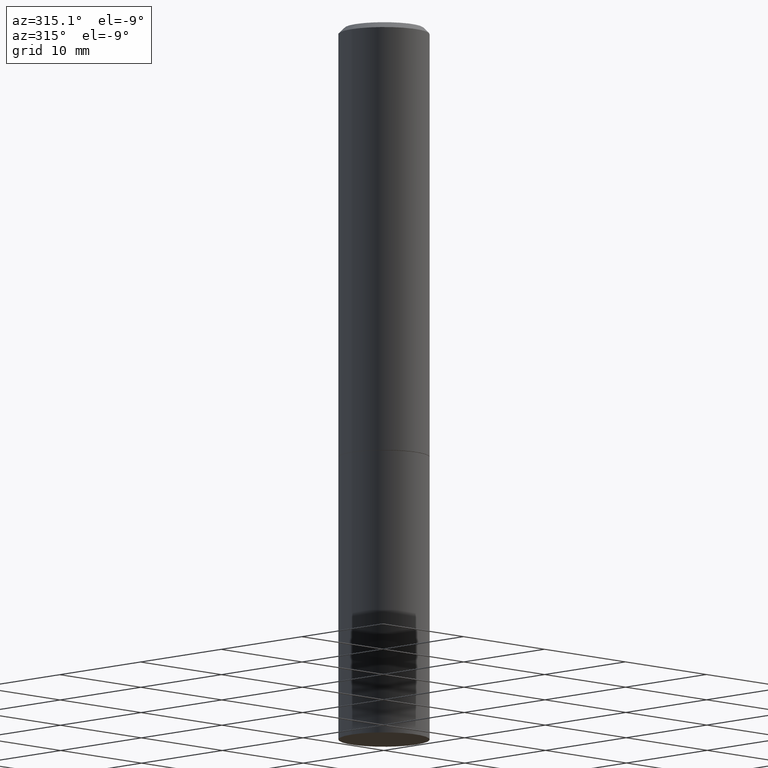
[diagram: clean part render]
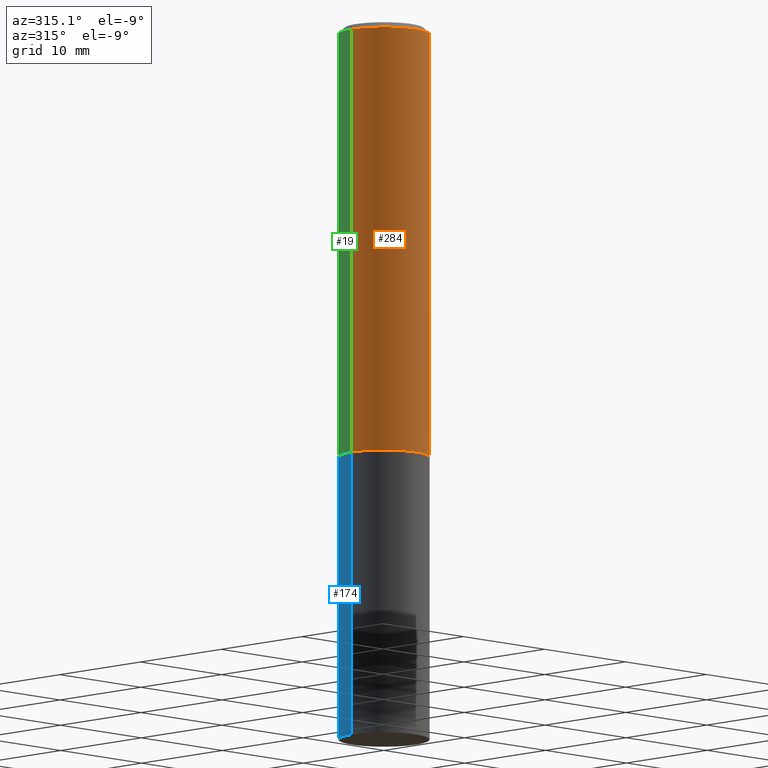
[diagram: same view with three faces highlighted in distinct colors, each labeled with its STEP entity id]
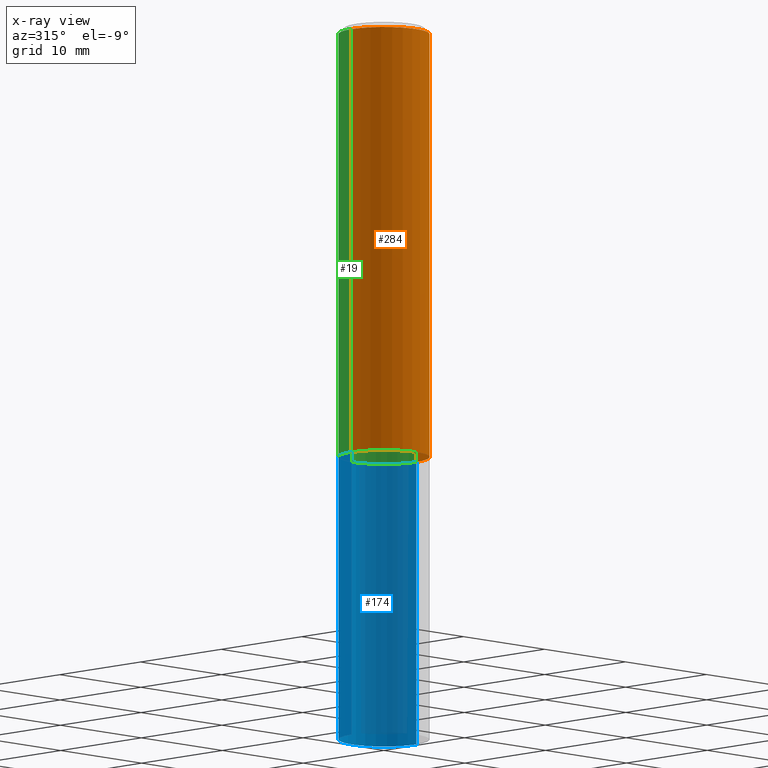
[diagram: x-ray of the same camera — body ghosted, the three highlighted faces saturated]
A machine part, auxiliary view with three faces highlighted in distinct colors.
The next image is the same camera in x-ray (body ghosted, the three faces saturated) — at least one of them is partly hidden behind the body in this view.
Their STEP definitions:

[orange] entity #284 — the highlighted cylindrical surface (partial cylindrical patch) has radius 4.0005 mm, axis along (-0, 0, 1).
#5 = AXIS2_PLACEMENT_3D ( 'NONE', #21, #237, #353 ) ;
#21 = CARTESIAN_POINT ( 'NONE',  ( 3.655975865246779683E-29, -5.219764601570503930E-15, -1.495000000000000329 ) ) ;
#29 = LINE ( 'NONE', #136, #93 ) ;
#37 = CIRCLE ( 'NONE', #260, 0.1574999999999997791 ) ;
#45 = CARTESIAN_POINT ( 'NONE',  ( -0.1575000000000000011, -1.525692305351524236E-15, -1.495000000000000329 ) ) ;
#58 = CIRCLE ( 'NONE', #5, 0.1575000000000000011 ) ;
#74 = DIRECTION ( 'NONE',  ( 1.000000000000000000, -6.982962677686266711E-15, 0.000000000000000000 ) ) ;
#76 = DIRECTION ( 'NONE',  ( -2.445468806185136877E-29, 3.491481338843145188E-15, 1.000000000000000000 ) ) ;
#89 = EDGE_CURVE ( 'NONE', #336, #150, #37, .T. ) ;
#93 = VECTOR ( 'NONE', #359, 39.37007874015748143 ) ;
#129 = DIRECTION ( 'NONE',  ( -2.445468806185136597E-29, 3.491481338843145583E-15, 1.000000000000000000 ) ) ;
#130 = ORIENTED_EDGE ( 'NONE', *, *, #321, .T. ) ;
#136 = CARTESIAN_POINT ( 'NONE',  ( -0.1574999999999998901, 1.119104808822157012E-15, -7.747322767151471379E-30 ) ) ;
#149 = CARTESIAN_POINT ( 'NONE',  ( 4.890937612370281041E-31, -6.982962677686302702E-17, -0.02000000000000003511 ) ) ;
#150 = VERTEX_POINT ( 'NONE', #235 ) ;
#192 = CYLINDRICAL_SURFACE ( 'NONE', #207, 0.1574999999999998901 ) ;
#198 = VECTOR ( 'NONE', #76, 39.37007874015748143 ) ;
#207 = AXIS2_PLACEMENT_3D ( 'NONE', #306, #244, #212 ) ;
#212 = DIRECTION ( 'NONE',  ( 1.000000000000000000, -6.982962677686266711E-15, 4.876176775795935793E-29 ) ) ;
#235 = CARTESIAN_POINT ( 'NONE',  ( 0.1574999999999997791, -1.150358061425877894E-15, -0.02000000000000003511 ) ) ;
#237 = DIRECTION ( 'NONE',  ( -2.445468806185136597E-29, 3.491481338843145583E-15, 1.000000000000000000 ) ) ;
#244 = DIRECTION ( 'NONE',  ( -2.445468806185136597E-29, 3.491481338843145583E-15, 1.000000000000000000 ) ) ;
#246 = ORIENTED_EDGE ( 'NONE', *, *, #332, .T. ) ;
#248 = VERTEX_POINT ( 'NONE', #317 ) ;
#251 = LINE ( 'NONE', #365, #198 ) ;
#260 = AXIS2_PLACEMENT_3D ( 'NONE', #149, #129, #74 ) ;
#264 = ORIENTED_EDGE ( 'NONE', *, *, #89, .F. ) ;
#279 = EDGE_LOOP ( 'NONE', ( #299, #130, #246, #264 ) ) ;
#284 = ADVANCED_FACE ( 'NONE', ( #304 ), #192, .T. ) ;
#295 = CARTESIAN_POINT ( 'NONE',  ( -0.1574999999999997791, 1.029986994958722407E-15, -0.02000000000000003511 ) ) ;
#299 = ORIENTED_EDGE ( 'NONE', *, *, #310, .F. ) ;
#304 = FACE_OUTER_BOUND ( 'NONE', #279, .T. ) ;
#306 = CARTESIAN_POINT ( 'NONE',  ( 0.000000000000000000, 0.000000000000000000, 0.000000000000000000 ) ) ;
#310 = EDGE_CURVE ( 'NONE', #358, #336, #29, .T. ) ;
#317 = CARTESIAN_POINT ( 'NONE',  ( 0.1575000000000000011, -6.319581223306091410E-15, -1.495000000000000329 ) ) ;
#321 = EDGE_CURVE ( 'NONE', #358, #248, #58, .T. ) ;
#332 = EDGE_CURVE ( 'NONE', #248, #150, #251, .T. ) ;
#336 = VERTEX_POINT ( 'NONE', #295 ) ;
#353 = DIRECTION ( 'NONE',  ( 1.000000000000000000, -6.982962677686268288E-15, 0.000000000000000000 ) ) ;
#358 = VERTEX_POINT ( 'NONE', #45 ) ;
#359 = DIRECTION ( 'NONE',  ( -2.445468806185136877E-29, 3.491481338843145188E-15, 1.000000000000000000 ) ) ;
#365 = CARTESIAN_POINT ( 'NONE',  ( 0.1574999999999998901, -1.099816621735586297E-15, 7.679978421878593829E-30 ) ) ;

[blue] entity #174 — the highlighted cylindrical surface (partial cylindrical patch) has radius 4.0005 mm, axis along (-0, 0, 1).
#33 = EDGE_CURVE ( 'NONE', #357, #333, #311, .T. ) ;
#34 = EDGE_LOOP ( 'NONE', ( #138, #217, #275, #120 ) ) ;
#52 = AXIS2_PLACEMENT_3D ( 'NONE', #291, #103, #123 ) ;
#61 = CARTESIAN_POINT ( 'NONE',  ( 0.1575000000000000011, -1.099816621735586889E-15, 7.679978421878598033E-30 ) ) ;
#71 = EDGE_CURVE ( 'NONE', #364, #110, #170, .T. ) ;
#72 = CARTESIAN_POINT ( 'NONE',  ( 0.1575000000000000011, -9.759737786468242027E-15, -2.480300000000000171 ) ) ;
#95 = CARTESIAN_POINT ( 'NONE',  ( 3.658421334052965286E-29, -5.223256082909346937E-15, -1.496000000000000441 ) ) ;
#103 = DIRECTION ( 'NONE',  ( -2.445468806185136597E-29, 3.491481338843145583E-15, 1.000000000000000000 ) ) ;
#105 = CARTESIAN_POINT ( 'NONE',  ( -0.1575000000000000011, -5.822483814998842744E-15, -2.480300000000000171 ) ) ;
#106 = DIRECTION ( 'NONE',  ( -2.445468806185136597E-29, 3.491481338843145583E-15, 1.000000000000000000 ) ) ;
#109 = CYLINDRICAL_SURFACE ( 'NONE', #117, 0.1575000000000000011 ) ;
#110 = VERTEX_POINT ( 'NONE', #255 ) ;
#117 = AXIS2_PLACEMENT_3D ( 'NONE', #210, #106, #186 ) ;
#120 = ORIENTED_EDGE ( 'NONE', *, *, #33, .F. ) ;
#123 = DIRECTION ( 'NONE',  ( 1.000000000000000000, -6.982962677686261977E-15, 0.000000000000000000 ) ) ;
#138 = ORIENTED_EDGE ( 'NONE', *, *, #340, .T. ) ;
#142 = DIRECTION ( 'NONE',  ( -2.445468806185136877E-29, 3.491481338843145188E-15, 1.000000000000000000 ) ) ;
#170 = LINE ( 'NONE', #288, #194 ) ;
#174 = ADVANCED_FACE ( 'NONE', ( #316 ), #109, .T. ) ;
#186 = DIRECTION ( 'NONE',  ( 1.000000000000000000, -6.982962677686265922E-15, 4.876176775795935232E-29 ) ) ;
#194 = VECTOR ( 'NONE', #142, 39.37007874015748143 ) ;
#197 = DIRECTION ( 'NONE',  ( -2.445468806185136877E-29, 3.491481338843145188E-15, 1.000000000000000000 ) ) ;
#201 = DIRECTION ( 'NONE',  ( 1.000000000000000000, -6.982962677686268288E-15, 0.000000000000000000 ) ) ;
#203 = DIRECTION ( 'NONE',  ( -2.445468806185136597E-29, 3.491481338843145583E-15, 1.000000000000000000 ) ) ;
#210 = CARTESIAN_POINT ( 'NONE',  ( 0.000000000000000000, 0.000000000000000000, 0.000000000000000000 ) ) ;
#217 = ORIENTED_EDGE ( 'NONE', *, *, #71, .T. ) ;
#240 = CIRCLE ( 'NONE', #52, 0.1575000000000000011 ) ;
#247 = EDGE_CURVE ( 'NONE', #333, #110, #355, .T. ) ;
#255 = CARTESIAN_POINT ( 'NONE',  ( -0.1575000000000000011, -5.822483814998842744E-15, -1.496000000000000441 ) ) ;
#275 = ORIENTED_EDGE ( 'NONE', *, *, #247, .F. ) ;
#287 = VECTOR ( 'NONE', #197, 39.37007874015748143 ) ;
#288 = CARTESIAN_POINT ( 'NONE',  ( -0.1575000000000000011, 1.119104808822157801E-15, -7.747322767151475583E-30 ) ) ;
#291 = CARTESIAN_POINT ( 'NONE',  ( 6.065496279980994755E-29, -8.659921164732655335E-15, -2.480300000000000171 ) ) ;
#292 = CARTESIAN_POINT ( 'NONE',  ( 0.1575000000000000011, -6.323072704644934417E-15, -1.496000000000000441 ) ) ;
#311 = LINE ( 'NONE', #61, #287 ) ;
#316 = FACE_OUTER_BOUND ( 'NONE', #34, .T. ) ;
#333 = VERTEX_POINT ( 'NONE', #292 ) ;
#340 = EDGE_CURVE ( 'NONE', #357, #364, #240, .T. ) ;
#343 = AXIS2_PLACEMENT_3D ( 'NONE', #95, #203, #201 ) ;
#355 = CIRCLE ( 'NONE', #343, 0.1575000000000000011 ) ;
#357 = VERTEX_POINT ( 'NONE', #72 ) ;
#364 = VERTEX_POINT ( 'NONE', #105 ) ;

[green] entity #19 — the highlighted cylindrical surface (partial cylindrical patch) has radius 4.0005 mm, axis along (-0, 0, 1).
#14 = ORIENTED_EDGE ( 'NONE', *, *, #17, .T. ) ;
#17 = EDGE_CURVE ( 'NONE', #248, #358, #155, .T. ) ;
#18 = CARTESIAN_POINT ( 'NONE',  ( 4.890937612370281041E-31, -6.982962677686302702E-17, -0.02000000000000003511 ) ) ;
#19 = ADVANCED_FACE ( 'NONE', ( #193 ), #164, .T. ) ;
#29 = LINE ( 'NONE', #136, #93 ) ;
#35 = ORIENTED_EDGE ( 'NONE', *, *, #332, .F. ) ;
#45 = CARTESIAN_POINT ( 'NONE',  ( -0.1575000000000000011, -1.525692305351524236E-15, -1.495000000000000329 ) ) ;
#60 = ORIENTED_EDGE ( 'NONE', *, *, #156, .F. ) ;
#63 = CIRCLE ( 'NONE', #313, 0.1574999999999997791 ) ;
#64 = DIRECTION ( 'NONE',  ( -2.445468806185136597E-29, 3.491481338843145583E-15, 1.000000000000000000 ) ) ;
#76 = DIRECTION ( 'NONE',  ( -2.445468806185136877E-29, 3.491481338843145188E-15, 1.000000000000000000 ) ) ;
#90 = CARTESIAN_POINT ( 'NONE',  ( 3.655975865246779683E-29, -5.219764601570503930E-15, -1.495000000000000329 ) ) ;
#93 = VECTOR ( 'NONE', #359, 39.37007874015748143 ) ;
#108 = AXIS2_PLACEMENT_3D ( 'NONE', #90, #64, #224 ) ;
#136 = CARTESIAN_POINT ( 'NONE',  ( -0.1574999999999998901, 1.119104808822157012E-15, -7.747322767151471379E-30 ) ) ;
#150 = VERTEX_POINT ( 'NONE', #235 ) ;
#155 = CIRCLE ( 'NONE', #108, 0.1575000000000000011 ) ;
#156 = EDGE_CURVE ( 'NONE', #150, #336, #63, .T. ) ;
#160 = ORIENTED_EDGE ( 'NONE', *, *, #310, .T. ) ;
#164 = CYLINDRICAL_SURFACE ( 'NONE', #361, 0.1574999999999998901 ) ;
#193 = FACE_OUTER_BOUND ( 'NONE', #351, .T. ) ;
#196 = CARTESIAN_POINT ( 'NONE',  ( 0.000000000000000000, 0.000000000000000000, 0.000000000000000000 ) ) ;
#198 = VECTOR ( 'NONE', #76, 39.37007874015748143 ) ;
#224 = DIRECTION ( 'NONE',  ( 1.000000000000000000, -6.982962677686268288E-15, 0.000000000000000000 ) ) ;
#235 = CARTESIAN_POINT ( 'NONE',  ( 0.1574999999999997791, -1.150358061425877894E-15, -0.02000000000000003511 ) ) ;
#248 = VERTEX_POINT ( 'NONE', #317 ) ;
#251 = LINE ( 'NONE', #365, #198 ) ;
#295 = CARTESIAN_POINT ( 'NONE',  ( -0.1574999999999997791, 1.029986994958722407E-15, -0.02000000000000003511 ) ) ;
#310 = EDGE_CURVE ( 'NONE', #358, #336, #29, .T. ) ;
#313 = AXIS2_PLACEMENT_3D ( 'NONE', #18, #349, #347 ) ;
#317 = CARTESIAN_POINT ( 'NONE',  ( 0.1575000000000000011, -6.319581223306091410E-15, -1.495000000000000329 ) ) ;
#332 = EDGE_CURVE ( 'NONE', #248, #150, #251, .T. ) ;
#335 = DIRECTION ( 'NONE',  ( -2.445468806185136597E-29, 3.491481338843145583E-15, 1.000000000000000000 ) ) ;
#336 = VERTEX_POINT ( 'NONE', #295 ) ;
#337 = DIRECTION ( 'NONE',  ( 1.000000000000000000, -6.982962677686266711E-15, 4.876176775795935793E-29 ) ) ;
#347 = DIRECTION ( 'NONE',  ( 1.000000000000000000, -6.982962677686266711E-15, 0.000000000000000000 ) ) ;
#349 = DIRECTION ( 'NONE',  ( -2.445468806185136597E-29, 3.491481338843145583E-15, 1.000000000000000000 ) ) ;
#351 = EDGE_LOOP ( 'NONE', ( #14, #160, #60, #35 ) ) ;
#358 = VERTEX_POINT ( 'NONE', #45 ) ;
#359 = DIRECTION ( 'NONE',  ( -2.445468806185136877E-29, 3.491481338843145188E-15, 1.000000000000000000 ) ) ;
#361 = AXIS2_PLACEMENT_3D ( 'NONE', #196, #335, #337 ) ;
#365 = CARTESIAN_POINT ( 'NONE',  ( 0.1574999999999998901, -1.099816621735586297E-15, 7.679978421878593829E-30 ) ) ;